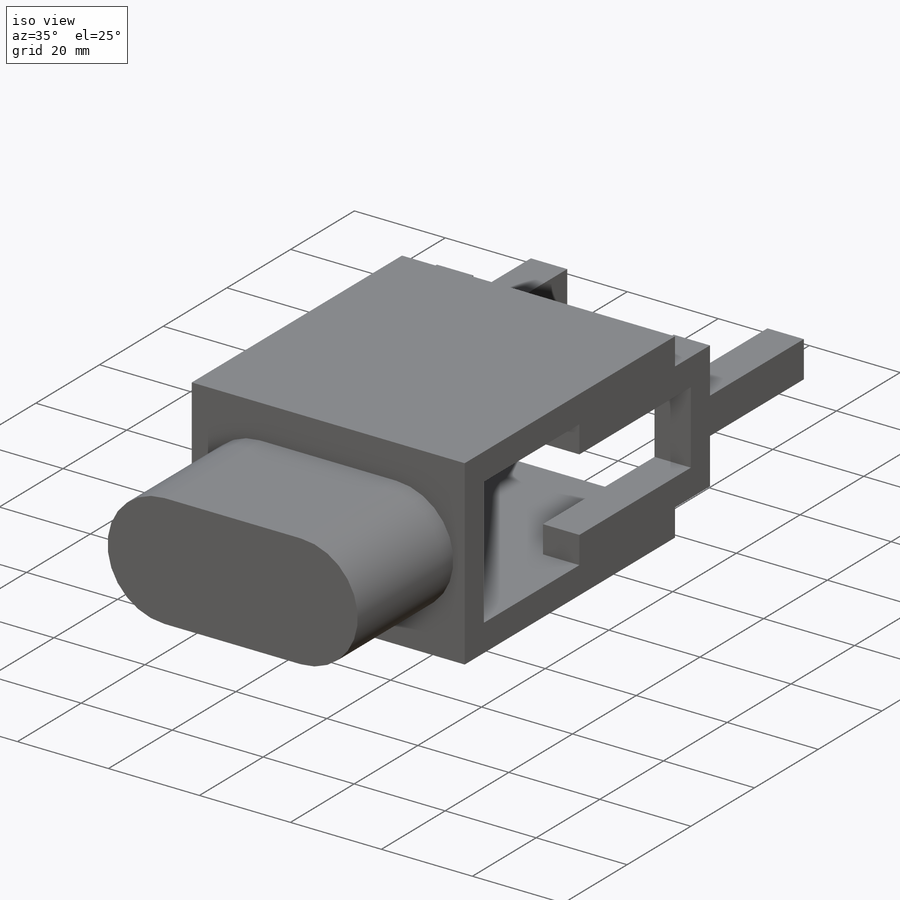
[diagram: iso view]
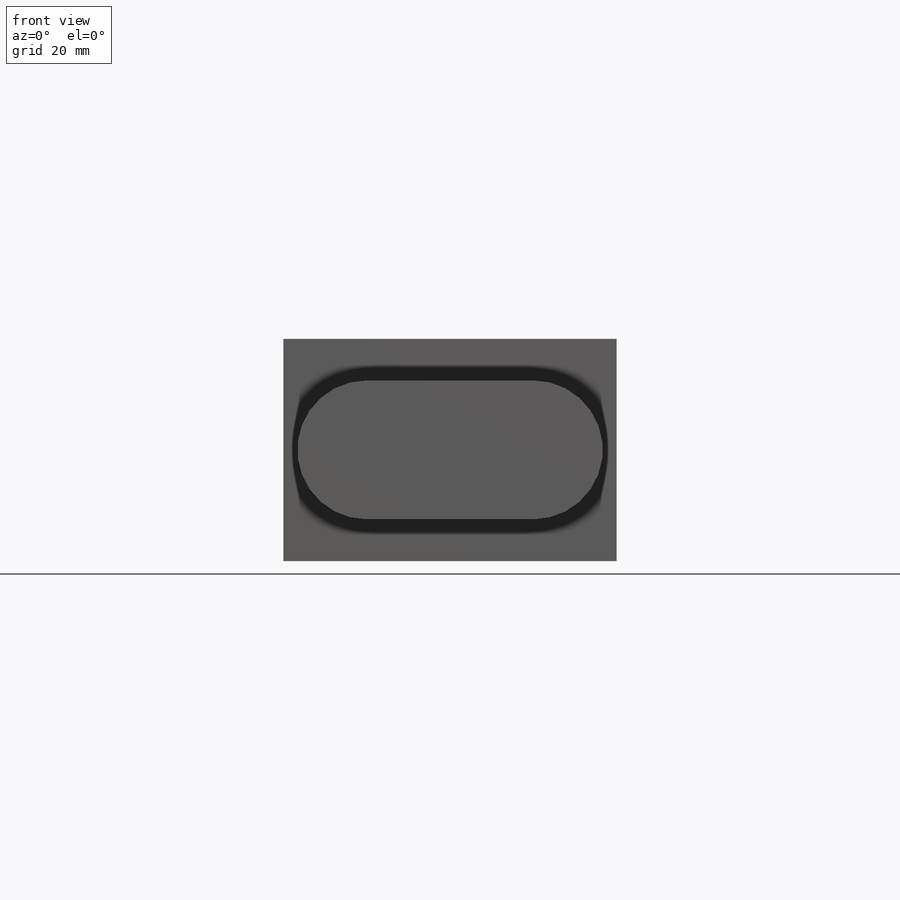
[diagram: front view]
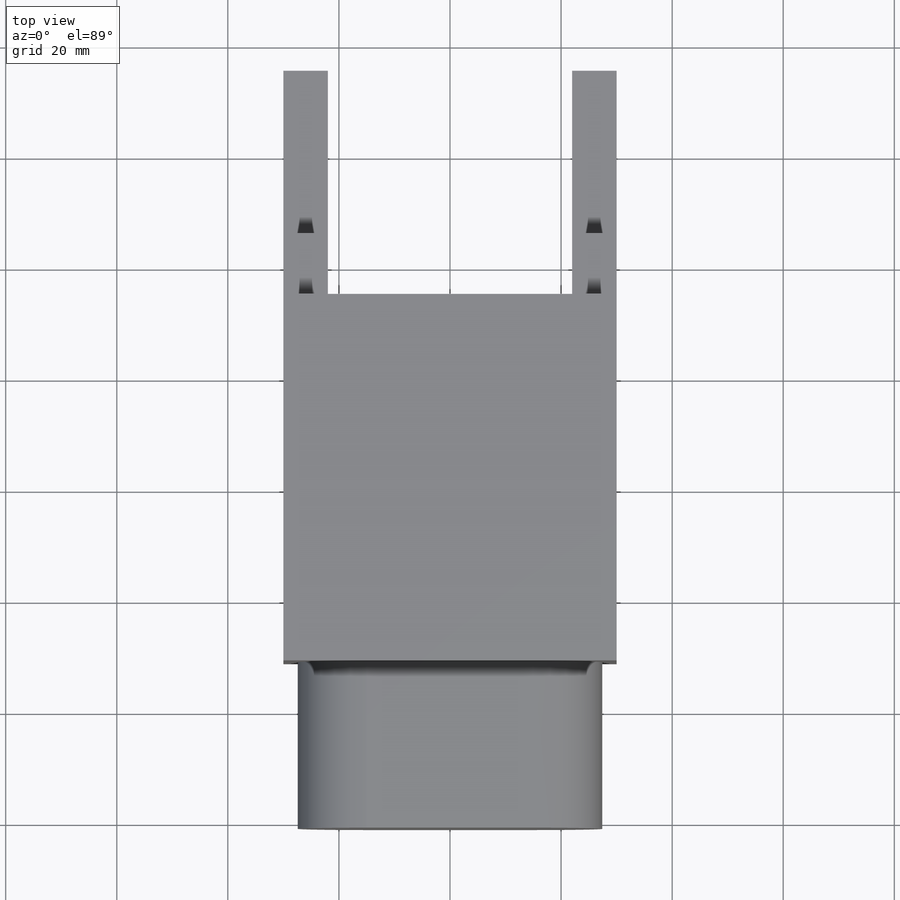
[diagram: top view]
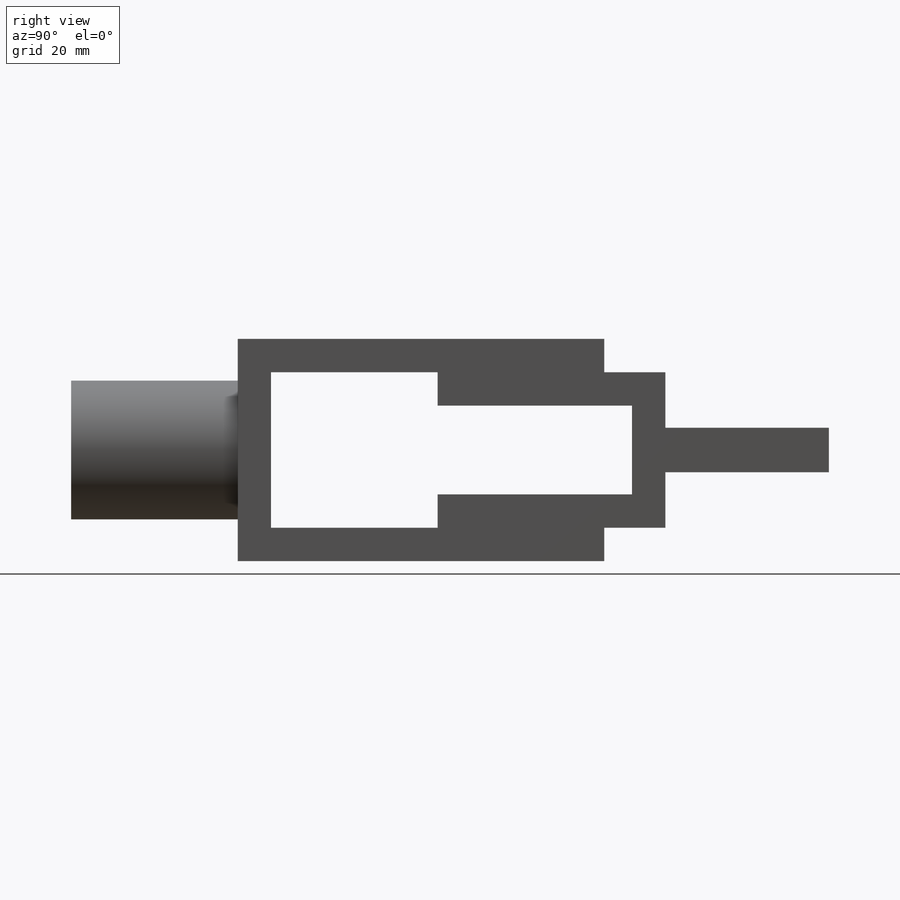
[diagram: right view]
SOLIDWORKS PART (.sldprt)
format: sldprt  version: not decoded by parser v0  size: 312,832 bytes
history: native  units: mm
features: sketch x8, extrude x7, plane x3, material x1, pattern_linear x1, cut_extrude x1 (+13 scaffold rows collapsed)
feature tree (34):
  scaffold x13  (default folders/planes/origin — collapsed)
  material  "材质 <未指定>"
  plane  "前视基准面"
  plane  "上视基准面"
  plane  "右视基准面"
  sketch  "草图1"  dims[D1=~12.034359mm]
  extrude  "凸台-拉伸1"  Depth=160mm
  sketch  "草图2"  dims[D1=25.0mm D2=40.0mm D3=5.0mm D4=5.0mm D5=5.0mm D6=5.0mm D7=5.0mm D8=5.0mm D9=5.0mm D10=5.0mm]
  extrude  "凸台-拉伸2"  Depth=8mm
  sketch  "草图3"  dims[D1=18.0mm D2=11.0mm]
  extrude  "凸台-拉伸3"  Depth=15mm
  sketch  "草图4"  dims[D1=25.0mm D2=30.0mm]
  extrude  "凸台-拉伸4"  Depth=30mm
  sketch  "草图5"  dims[D1=60.0mm D2=40.0mm]
  extrude  "凸台-拉伸5"  Depth=6mm
  sketch  "草图6"  dims[D1=6.0mm D2=6.0mm]
  extrude  "凸台-拉伸6"  Depth=60mm
  sketch  "草图7"  dims[D1=6.0mm D2=6.0mm D3=6.0mm D4=35.0mm D5=4.0mm D6=4.0mm]
  extrude  "凸台-拉伸7"  Depth=8mm
  pattern_linear  "阵列(线性)1"  Count1=2 Count2=1 Spacing1=52mm Spacing2=10mm
  sketch  "草图8"
  cut_extrude  "切除-拉伸1"  Depth=300mm
decode coverage: 16 of 17 modeling features carry decoded parameters
note: ~ marks probable driven/reference dimensions
note: suppression state not decoded; provenance and decode notes live in map.json
